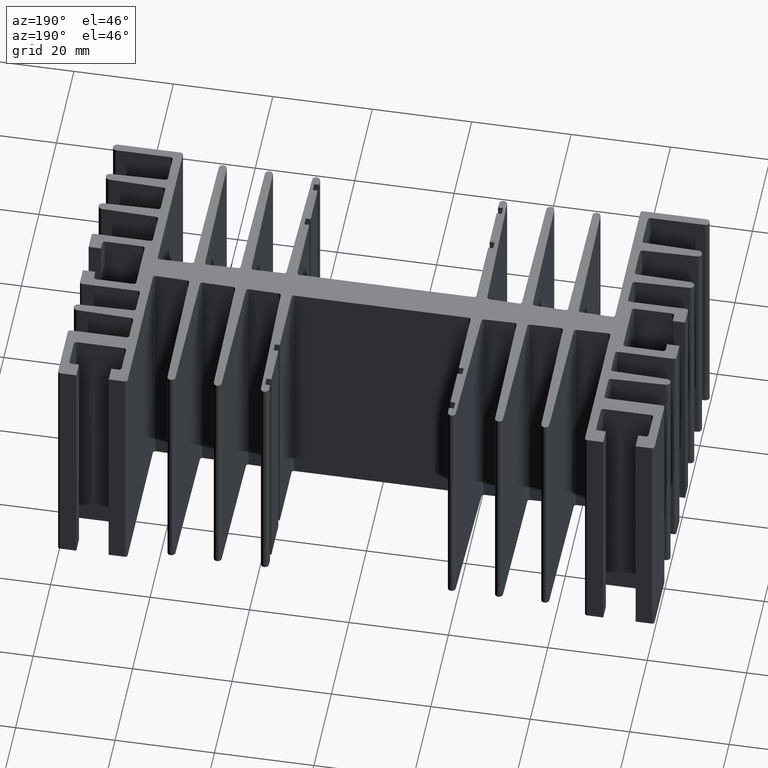
[diagram: clean part render]
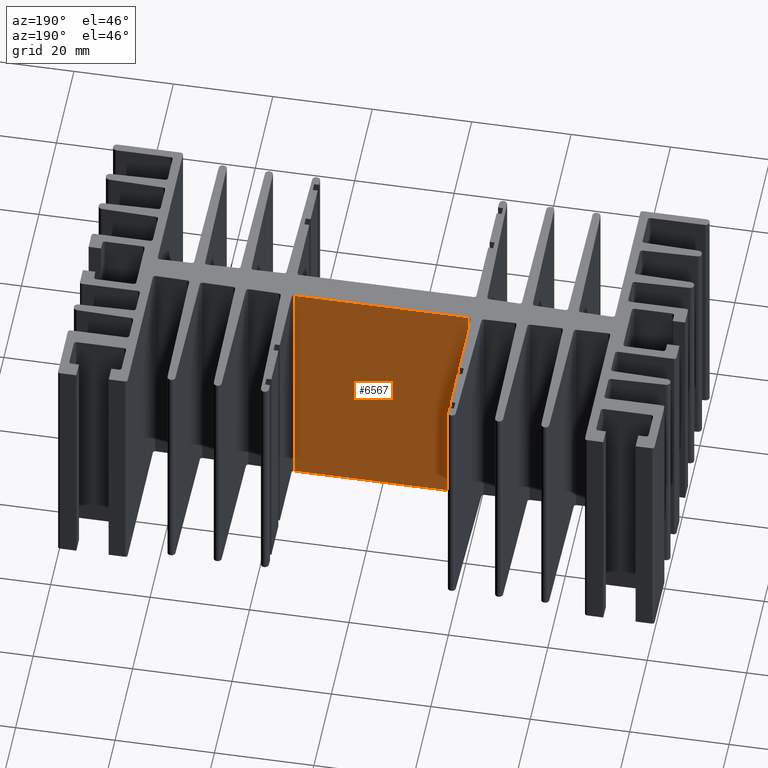
[diagram: same view with one face highlighted and labeled with its STEP entity id]
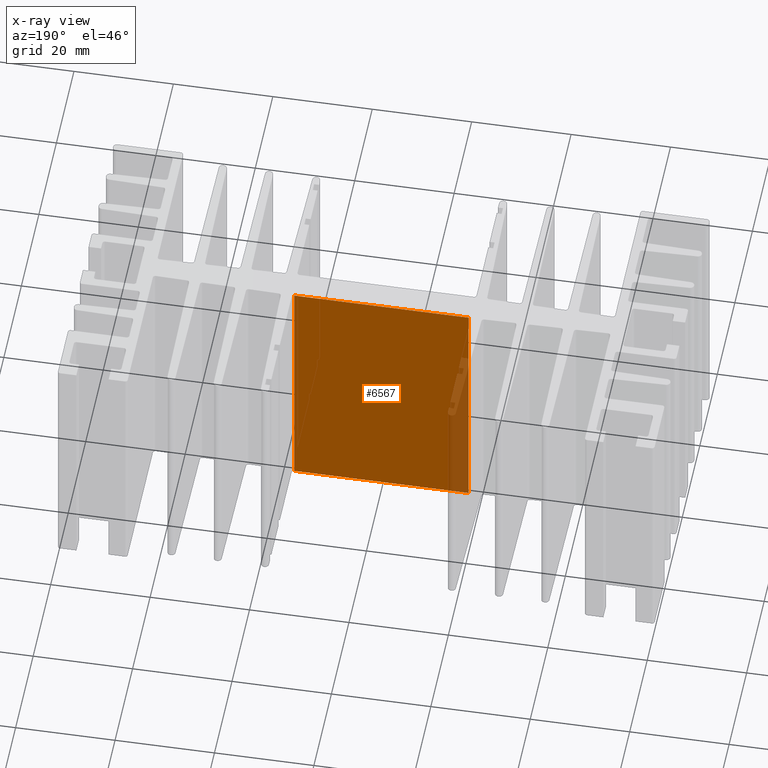
[diagram: x-ray of the same camera — body ghosted, the highlighted face saturated]
A machine part, auxiliary view. The second image highlights one B-rep face of the part: STEP entity #6567.
The next image is the same camera in x-ray: the body ghosted, the highlighted face saturated — about 8% of this face is hidden behind the body in this view.
In plain terms, the highlighted planar face has unit normal (0, -1, 0).
Its self-contained STEP definition (entity closure, byte-faithful):
#394 = ORIENTED_EDGE ( 'NONE', *, *, #5279, .F. ) ;
#781 = CARTESIAN_POINT ( 'NONE',  ( 17.50000000137670142, 2.871919660451155210, 50.00000000000000000 ) ) ;
#1443 = CARTESIAN_POINT ( 'NONE',  ( -17.49999999862330213, 2.871919660451155210, 50.00000000000000000 ) ) ;
#1514 = LINE ( 'NONE', #4081, #5854 ) ;
#1569 = VECTOR ( 'NONE', #3353, 1000.000000000000000 ) ;
#1700 = DIRECTION ( 'NONE',  ( 0.0000000000000000000, -1.000000000000000000, 0.0000000000000000000 ) ) ;
#1983 = LINE ( 'NONE', #4556, #4627 ) ;
#2228 = CARTESIAN_POINT ( 'NONE',  ( -17.49999999862330213, 2.871919660451155210, 50.00000000000000000 ) ) ;
#2326 = FACE_OUTER_BOUND ( 'NONE', #4719, .T. ) ;
#2778 = AXIS2_PLACEMENT_3D ( 'NONE', #7477, #1700, #4277 ) ;
#2882 = EDGE_CURVE ( 'NONE', #8245, #4156, #1983, .T. ) ;
#3353 = DIRECTION ( 'NONE',  ( -1.000000000000000000, 0.0000000000000000000, 0.0000000000000000000 ) ) ;
#4012 = DIRECTION ( 'NONE',  ( 0.0000000000000000000, 0.0000000000000000000, -1.000000000000000000 ) ) ;
#4081 = CARTESIAN_POINT ( 'NONE',  ( 17.50000000137670142, 2.871919660451155210, 0.0000000000000000000 ) ) ;
#4156 = VERTEX_POINT ( 'NONE', #6588 ) ;
#4277 = DIRECTION ( 'NONE',  ( 0.0000000000000000000, 0.0000000000000000000, -1.000000000000000000 ) ) ;
#4556 = CARTESIAN_POINT ( 'NONE',  ( 17.50000000137670142, 2.871919660451155210, 50.00000000000000000 ) ) ;
#4627 = VECTOR ( 'NONE', #7135, 1000.000000000000000 ) ;
#4719 = EDGE_LOOP ( 'NONE', ( #8002, #7830, #394, #7185 ) ) ;
#4898 = PLANE ( 'NONE',  #2778 ) ;
#4916 = EDGE_CURVE ( 'NONE', #4156, #7727, #1514, .T. ) ;
#5279 = EDGE_CURVE ( 'NONE', #8245, #7362, #6555, .T. ) ;
#5474 = VECTOR ( 'NONE', #4012, 1000.000000000000000 ) ;
#5854 = VECTOR ( 'NONE', #6649, 1000.000000000000000 ) ;
#6088 = CARTESIAN_POINT ( 'NONE',  ( -17.49999999862330213, 2.871919660451155210, 0.0000000000000000000 ) ) ;
#6555 = LINE ( 'NONE', #781, #1569 ) ;
#6567 = ADVANCED_FACE ( 'NONE', ( #2326 ), #4898, .F. ) ;
#6588 = CARTESIAN_POINT ( 'NONE',  ( 17.50000000137670142, 2.871919660451155210, 0.0000000000000000000 ) ) ;
#6649 = DIRECTION ( 'NONE',  ( -1.000000000000000000, 0.0000000000000000000, 0.0000000000000000000 ) ) ;
#6807 = EDGE_CURVE ( 'NONE', #7362, #7727, #7218, .T. ) ;
#6993 = CARTESIAN_POINT ( 'NONE',  ( 17.50000000137670142, 2.871919660451155210, 50.00000000000000000 ) ) ;
#7135 = DIRECTION ( 'NONE',  ( 0.0000000000000000000, 0.0000000000000000000, -1.000000000000000000 ) ) ;
#7185 = ORIENTED_EDGE ( 'NONE', *, *, #2882, .T. ) ;
#7218 = LINE ( 'NONE', #1443, #5474 ) ;
#7362 = VERTEX_POINT ( 'NONE', #2228 ) ;
#7477 = CARTESIAN_POINT ( 'NONE',  ( 17.50000000137670142, 2.871919660451155210, 50.00000000000000000 ) ) ;
#7727 = VERTEX_POINT ( 'NONE', #6088 ) ;
#7830 = ORIENTED_EDGE ( 'NONE', *, *, #6807, .F. ) ;
#8002 = ORIENTED_EDGE ( 'NONE', *, *, #4916, .T. ) ;
#8245 = VERTEX_POINT ( 'NONE', #6993 ) ;